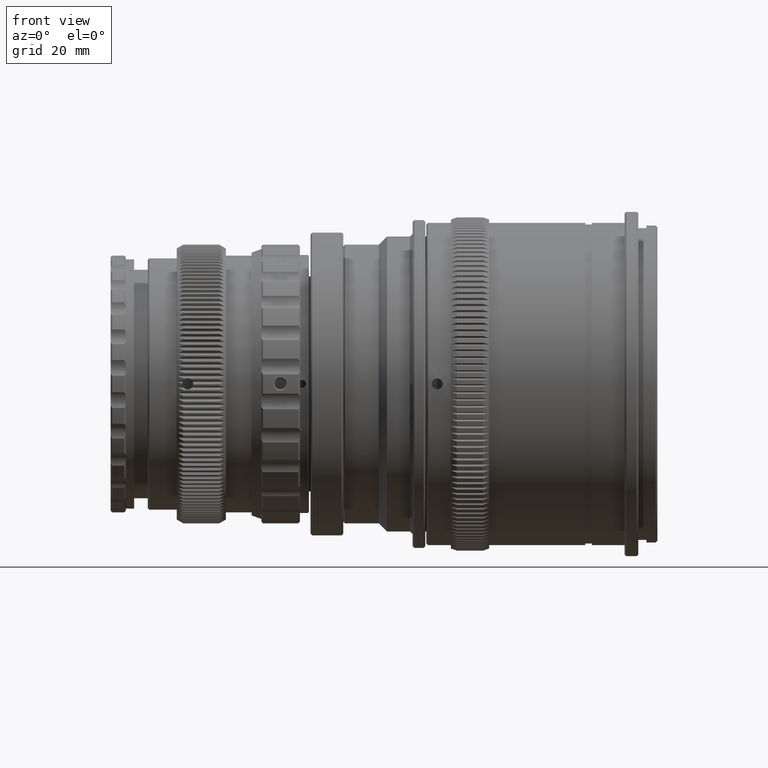
[diagram: clean part render]
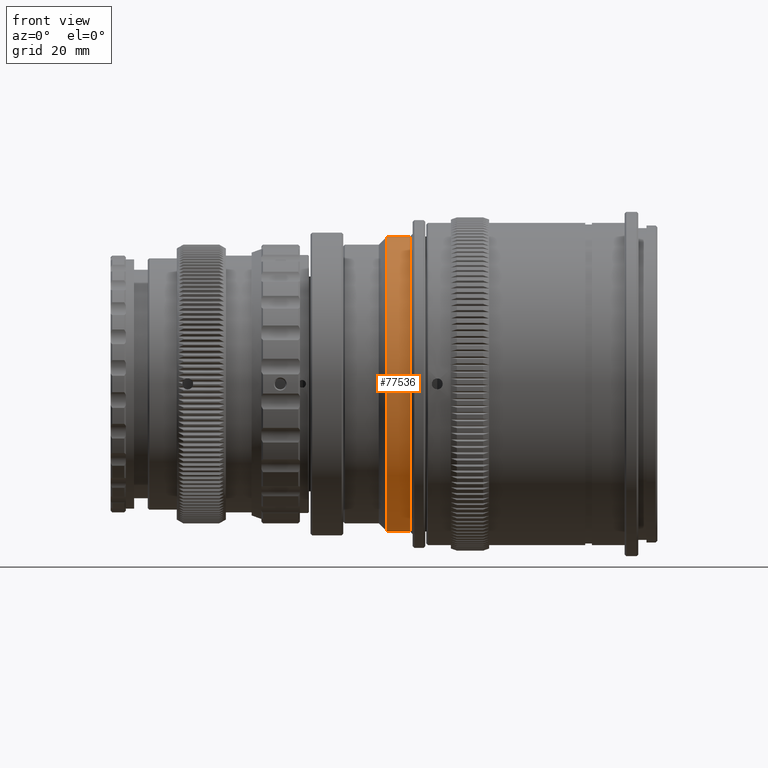
[diagram: same view with one face highlighted and labeled with its STEP entity id]
A machine part, front view. The second image highlights one B-rep face of the part: STEP entity #77536.
In plain terms, the highlighted cylindrical surface (partial cylindrical patch) has radius 27 mm, axis along (-1, -0, -0).
Its self-contained STEP definition (entity closure, byte-faithful):
#928 = AXIS2_PLACEMENT_3D ( 'NONE', #53250, #47411, #53518 ) ;
#3805 = ORIENTED_EDGE ( 'NONE', *, *, #77673, .F. ) ;
#4440 = EDGE_CURVE ( 'NONE', #70956, #62094, #73349, .T. ) ;
#5079 = EDGE_CURVE ( 'NONE', #59127, #17133, #52354, .T. ) ;
#11339 = CARTESIAN_POINT ( 'NONE',  ( -11.50000000000000400, 0.0000000000000000000, 0.0000000000000000000 ) ) ;
#16445 = CARTESIAN_POINT ( 'NONE',  ( -7.299999999999998900, -26.99999999999999600, 3.337162527676537100E-015 ) ) ;
#16807 = CARTESIAN_POINT ( 'NONE',  ( 0.0000000000000000000, 3.306546357697853300E-015, -26.99999999999999600 ) ) ;
#17133 = VERTEX_POINT ( 'NONE', #59871 ) ;
#20536 = DIRECTION ( 'NONE',  ( -1.000000000000000000, -0.0000000000000000000, -0.0000000000000000000 ) ) ;
#21867 = FACE_OUTER_BOUND ( 'NONE', #21992, .T. ) ;
#21992 = EDGE_LOOP ( 'NONE', ( #3805, #25726, #24928, #40051, #34468 ) ) ;
#22183 = LINE ( 'NONE', #43938, #54044 ) ;
#23791 = VECTOR ( 'NONE', #43735, 1000.000000000000000 ) ;
#24928 = ORIENTED_EDGE ( 'NONE', *, *, #5079, .T. ) ;
#25726 = ORIENTED_EDGE ( 'NONE', *, *, #33092, .T. ) ;
#27615 = EDGE_CURVE ( 'NONE', #17133, #62094, #22183, .T. ) ;
#28779 = CARTESIAN_POINT ( 'NONE',  ( -7.299999999999998900, 0.0000000000000000000, 0.0000000000000000000 ) ) ;
#33092 = EDGE_CURVE ( 'NONE', #38075, #59127, #70647, .T. ) ;
#34468 = ORIENTED_EDGE ( 'NONE', *, *, #4440, .F. ) ;
#38075 = VERTEX_POINT ( 'NONE', #77869 ) ;
#38119 = DIRECTION ( 'NONE',  ( -1.000000000000000000, -0.0000000000000000000, -0.0000000000000000000 ) ) ;
#40051 = ORIENTED_EDGE ( 'NONE', *, *, #27615, .T. ) ;
#43260 = DIRECTION ( 'NONE',  ( -1.000000000000000000, -0.0000000000000000000, -0.0000000000000000000 ) ) ;
#43735 = DIRECTION ( 'NONE',  ( -1.000000000000000000, -0.0000000000000000000, -0.0000000000000000000 ) ) ;
#43938 = CARTESIAN_POINT ( 'NONE',  ( 0.0000000000000000000, 0.0000000000000000000, 26.99999999999999600 ) ) ;
#47411 = DIRECTION ( 'NONE',  ( -1.000000000000000000, -0.0000000000000000000, -0.0000000000000000000 ) ) ;
#52354 = CIRCLE ( 'NONE', #65193, 26.99999999999999600 ) ;
#53250 = CARTESIAN_POINT ( 'NONE',  ( 0.0000000000000000000, 0.0000000000000000000, 0.0000000000000000000 ) ) ;
#53518 = DIRECTION ( 'NONE',  ( 0.0000000000000000000, 0.0000000000000000000, 1.000000000000000000 ) ) ;
#53707 = CYLINDRICAL_SURFACE ( 'NONE', #928, 26.99999999999999600 ) ;
#54044 = VECTOR ( 'NONE', #38119, 1000.000000000000000 ) ;
#59127 = VERTEX_POINT ( 'NONE', #16445 ) ;
#59871 = CARTESIAN_POINT ( 'NONE',  ( -7.299999999999998900, 0.0000000000000000000, 26.99999999999999600 ) ) ;
#59938 = DIRECTION ( 'NONE',  ( 0.0000000000000000000, 0.0000000000000000000, 1.000000000000000000 ) ) ;
#61895 = AXIS2_PLACEMENT_3D ( 'NONE', #11339, #43260, #74157 ) ;
#62094 = VERTEX_POINT ( 'NONE', #66172 ) ;
#65193 = AXIS2_PLACEMENT_3D ( 'NONE', #70577, #20536, #76896 ) ;
#66172 = CARTESIAN_POINT ( 'NONE',  ( -11.50000000000000400, 0.0000000000000000000, 26.99999999999999600 ) ) ;
#67615 = LINE ( 'NONE', #16807, #23791 ) ;
#70577 = CARTESIAN_POINT ( 'NONE',  ( -7.299999999999998900, 0.0000000000000000000, 0.0000000000000000000 ) ) ;
#70647 = CIRCLE ( 'NONE', #82335, 26.99999999999999600 ) ;
#70956 = VERTEX_POINT ( 'NONE', #81209 ) ;
#72960 = DIRECTION ( 'NONE',  ( -1.000000000000000000, -0.0000000000000000000, -0.0000000000000000000 ) ) ;
#73349 = CIRCLE ( 'NONE', #61895, 26.99999999999999600 ) ;
#74157 = DIRECTION ( 'NONE',  ( -6.424901762877064700E-017, 0.0000000000000000000, -1.000000000000000000 ) ) ;
#76896 = DIRECTION ( 'NONE',  ( 0.0000000000000000000, 0.0000000000000000000, 1.000000000000000000 ) ) ;
#77536 = ADVANCED_FACE ( 'NONE', ( #21867 ), #53707, .T. ) ;
#77673 = EDGE_CURVE ( 'NONE', #38075, #70956, #67615, .T. ) ;
#77869 = CARTESIAN_POINT ( 'NONE',  ( -7.299999999999998900, 3.306546357697853300E-015, -26.99999999999999600 ) ) ;
#81209 = CARTESIAN_POINT ( 'NONE',  ( -11.50000000000000400, 3.306546357697853300E-015, -26.99999999999999600 ) ) ;
#82335 = AXIS2_PLACEMENT_3D ( 'NONE', #28779, #72960, #59938 ) ;